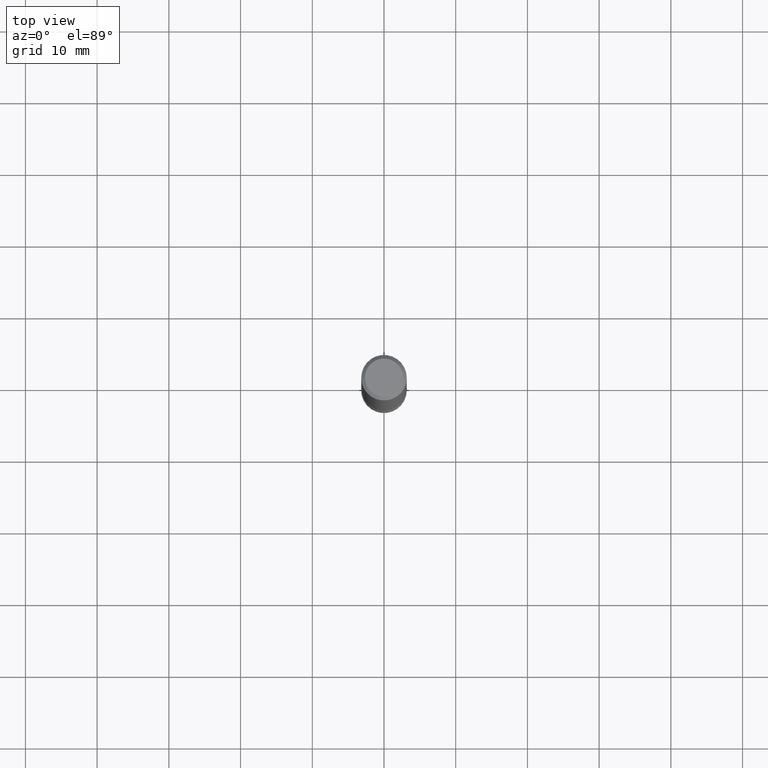
[diagram: clean part render]
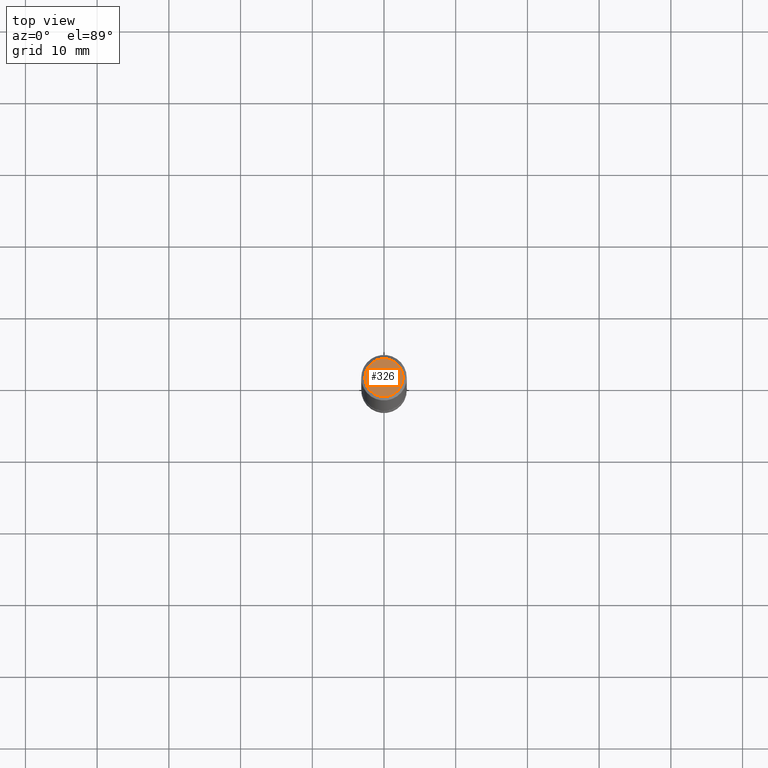
[diagram: same view with one face highlighted and labeled with its STEP entity id]
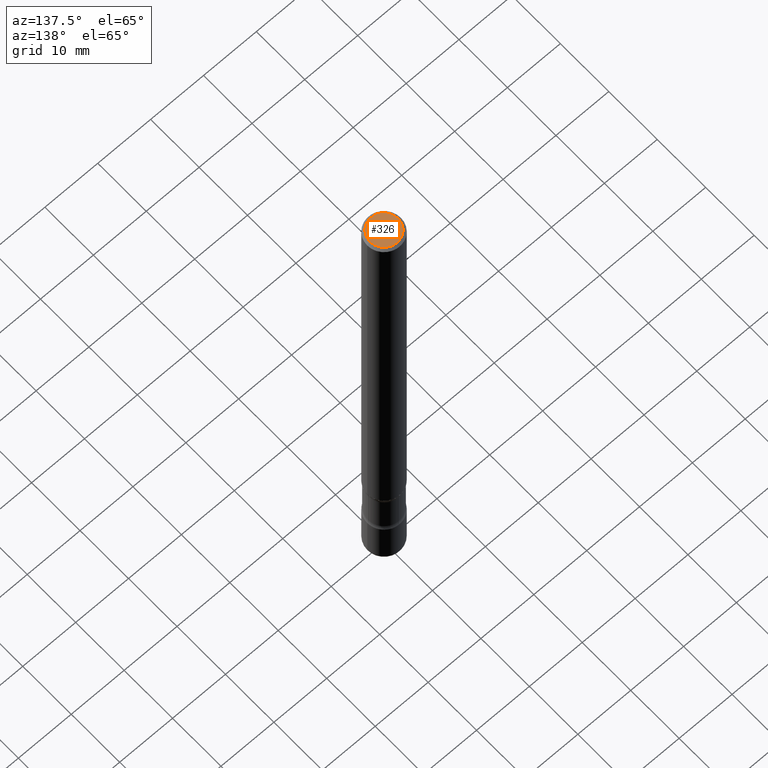
[diagram: same view with one face highlighted and labeled with its STEP entity id]
A machine part, top view. The second image highlights one B-rep face of the part: STEP entity #326.
A second angle (auxiliary view) of the same face is appended — the face is thin or edge-on in the first view.
In plain terms, the highlighted planar face has unit normal (0, -0, -1).
Its self-contained STEP definition (entity closure, byte-faithful):
#10 = AXIS2_PLACEMENT_3D ( 'NONE', #643, #86, #81 ) ;
#29 = ORIENTED_EDGE ( 'NONE', *, *, #308, .T. ) ;
#38 = DIRECTION ( 'NONE',  ( 2.438088387897960049E-29, -3.491481338843145188E-15, -1.000000000000000000 ) ) ;
#81 = DIRECTION ( 'NONE',  ( 1.000000000000000000, -6.982962677686267499E-15, 4.876206205277409163E-29 ) ) ;
#86 = DIRECTION ( 'NONE',  ( -2.445468806185136597E-29, 3.491481338843145583E-15, 1.000000000000000000 ) ) ;
#115 = VERTEX_POINT ( 'NONE', #490 ) ;
#128 = AXIS2_PLACEMENT_3D ( 'NONE', #233, #677, #219 ) ;
#147 = CARTESIAN_POINT ( 'NONE',  ( 7.332110811570557564E-16, 0.1049999999999996769, -3.644712843334789960E-16 ) ) ;
#170 = DIRECTION ( 'NONE',  ( -1.000000000000000000, 6.982962677686265922E-15, -4.876176775795935793E-29 ) ) ;
#185 = EDGE_CURVE ( 'NONE', #115, #773, #665, .T. ) ;
#219 = DIRECTION ( 'NONE',  ( 1.000000000000000000, -6.982962677686267499E-15, 4.876206205277409163E-29 ) ) ;
#233 = CARTESIAN_POINT ( 'NONE',  ( -1.043851414335219820E-46, 1.490343170380447200E-32, 4.268512490100411279E-18 ) ) ;
#308 = EDGE_CURVE ( 'NONE', #773, #115, #778, .T. ) ;
#326 = ADVANCED_FACE ( 'NONE', ( #578 ), #499, .F. ) ;
#432 = EDGE_LOOP ( 'NONE', ( #29, #791 ) ) ;
#490 = CARTESIAN_POINT ( 'NONE',  ( 0.1049999999999996769, -8.238720831321554950E-16, 4.268512490105855498E-18 ) ) ;
#499 = PLANE ( 'NONE',  #549 ) ;
#549 = AXIS2_PLACEMENT_3D ( 'NONE', #147, #38, #170 ) ;
#578 = FACE_OUTER_BOUND ( 'NONE', #432, .T. ) ;
#643 = CARTESIAN_POINT ( 'NONE',  ( -1.043851414335219820E-46, 1.490343170380447200E-32, 4.268512490100411279E-18 ) ) ;
#665 = CIRCLE ( 'NONE', #128, 0.1049999999999996769 ) ;
#677 = DIRECTION ( 'NONE',  ( -2.445468806185136597E-29, 3.491481338843145583E-15, 1.000000000000000000 ) ) ;
#691 = CARTESIAN_POINT ( 'NONE',  ( -0.1049999999999996769, 7.681258945454870110E-16, 4.268512490095161194E-18 ) ) ;
#773 = VERTEX_POINT ( 'NONE', #691 ) ;
#778 = CIRCLE ( 'NONE', #10, 0.1049999999999996769 ) ;
#791 = ORIENTED_EDGE ( 'NONE', *, *, #185, .T. ) ;